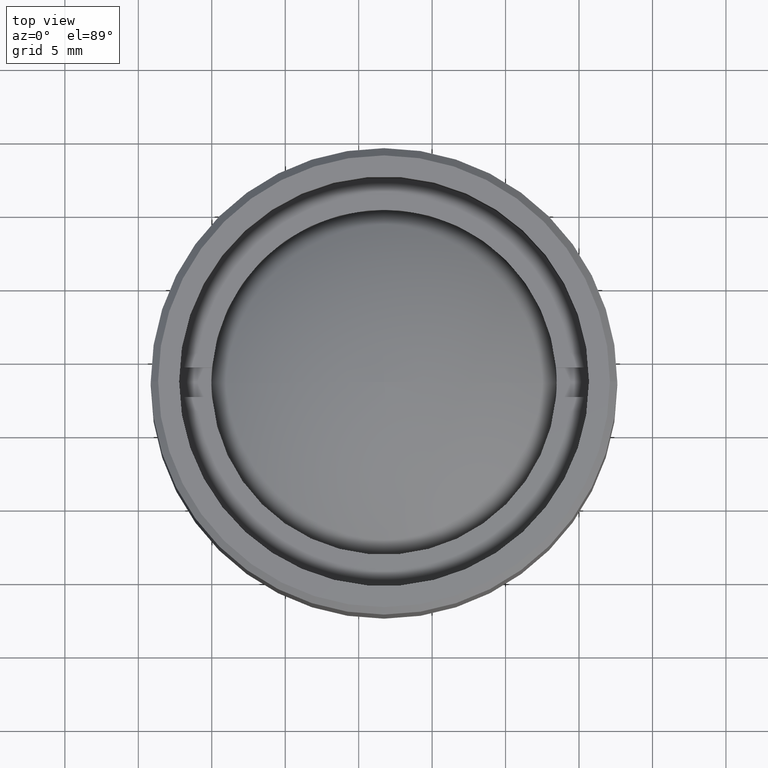
[diagram: clean part render]
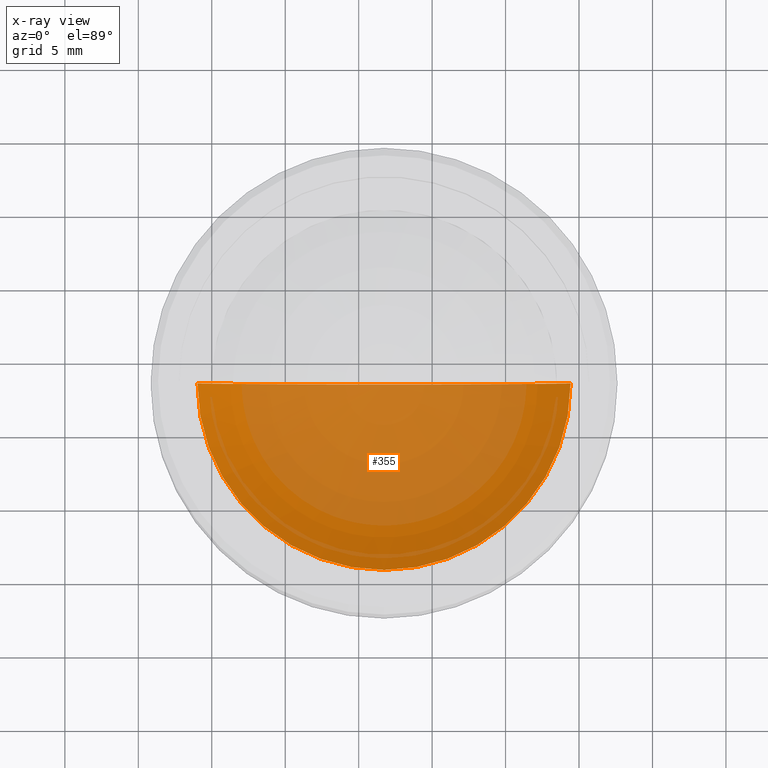
[diagram: x-ray — body ghosted, one internal face saturated and labeled with its STEP entity id]
A machine part, top view, then the same camera in x-ray: the body is ghosted and one INTERNAL B-rep face — a face not visible from any outside direction — is saturated and labeled: STEP entity #355.
In plain terms, the highlighted spherical surface has radius 20.1 mm.
Its self-contained STEP definition (entity closure, byte-faithful):
#57 = EDGE_CURVE ( 'NONE', #920, #1498, #82, .T. ) ;
#82 = CIRCLE ( 'NONE', #912, 12.69999999999999929 ) ;
#92 = AXIS2_PLACEMENT_3D ( 'NONE', #1231, #1459, #1223 ) ;
#120 = DIRECTION ( 'NONE',  ( 0.000000000000000000, -0.000000000000000000, 1.000000000000000000 ) ) ;
#131 = DIRECTION ( 'NONE',  ( -1.000000000000000000, 0.000000000000000000, 0.000000000000000000 ) ) ;
#338 = ORIENTED_EDGE ( 'NONE', *, *, #820, .F. ) ;
#355 = ADVANCED_FACE ( 'NONE', ( #785 ), #1317, .T. ) ;
#360 = EDGE_LOOP ( 'NONE', ( #338, #1255 ) ) ;
#528 = AXIS2_PLACEMENT_3D ( 'NONE', #1597, #120, #131 ) ;
#567 = CARTESIAN_POINT ( 'NONE',  ( -12.69999999999999929, 0.000000000000000000, -5.479473675320360115 ) ) ;
#615 = CARTESIAN_POINT ( 'NONE',  ( 1.342083979498651956E-16, 0.000000000000000000, -5.479473675320360115 ) ) ;
#785 = FACE_OUTER_BOUND ( 'NONE', #360, .T. ) ;
#820 = EDGE_CURVE ( 'NONE', #920, #1498, #1578, .T. ) ;
#849 = DIRECTION ( 'NONE',  ( -1.000000000000000000, 0.000000000000000000, 0.000000000000000000 ) ) ;
#912 = AXIS2_PLACEMENT_3D ( 'NONE', #615, #1142, #849 ) ;
#920 = VERTEX_POINT ( 'NONE', #933 ) ;
#933 = CARTESIAN_POINT ( 'NONE',  ( 12.69999999999999929, 1.555301434917139813E-15, -5.479473675320360115 ) ) ;
#1142 = DIRECTION ( 'NONE',  ( 0.000000000000000000, 0.000000000000000000, -1.000000000000000000 ) ) ;
#1223 = DIRECTION ( 'NONE',  ( -1.000000000000000000, -1.224646799147351975E-16, 0.000000000000000000 ) ) ;
#1231 = CARTESIAN_POINT ( 'NONE',  ( 0.000000000000000000, 0.000000000000000000, 10.09999999999999964 ) ) ;
#1255 = ORIENTED_EDGE ( 'NONE', *, *, #57, .T. ) ;
#1317 = SPHERICAL_SURFACE ( 'NONE', #528, 20.10000000000000142 ) ;
#1459 = DIRECTION ( 'NONE',  ( -1.224646799147351975E-16, 1.000000000000000000, -2.999519565323720005E-33 ) ) ;
#1498 = VERTEX_POINT ( 'NONE', #567 ) ;
#1578 = CIRCLE ( 'NONE', #92, 20.10000000000000142 ) ;
#1597 = CARTESIAN_POINT ( 'NONE',  ( 0.000000000000000000, 0.000000000000000000, 10.09999999999999964 ) ) ;